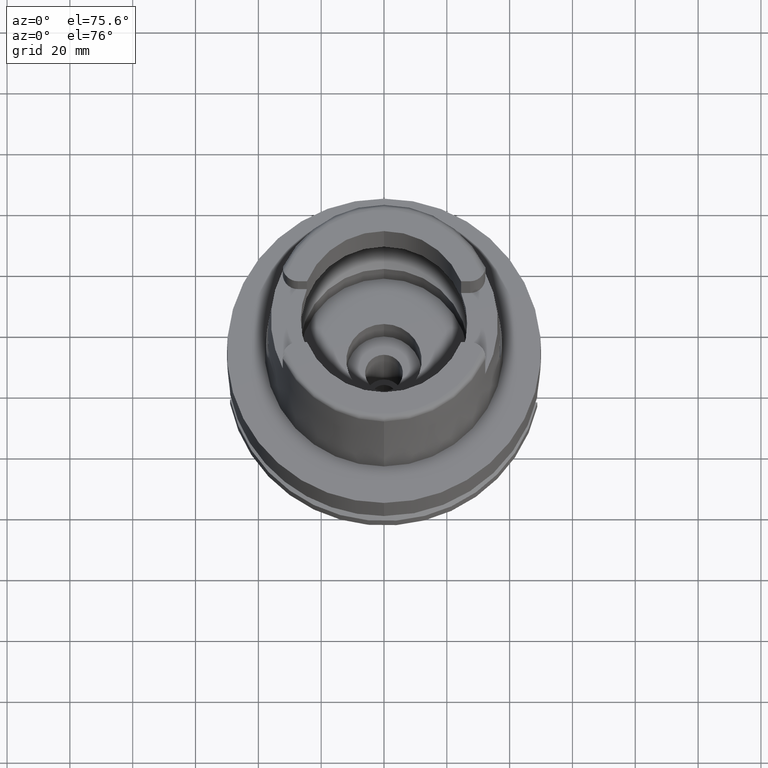
[diagram: clean part render]
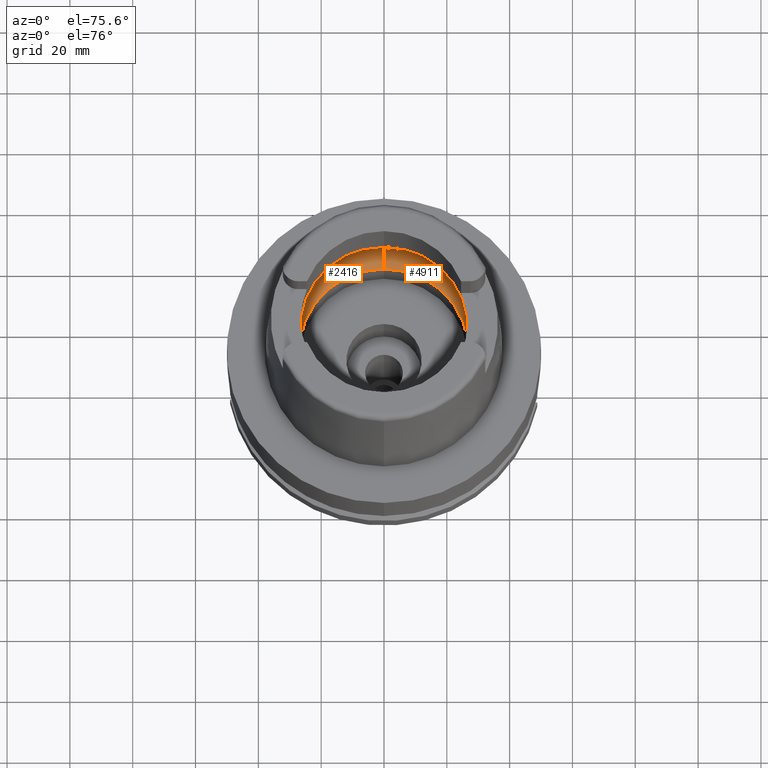
[diagram: same view with one multi-face feature highlighted, each face labeled with its STEP entity id]
A machine part, auxiliary view. The highlighted faces form ONE feature: a constant-radius fillet chain: 2 tangent blend faces with common blend radius 12 mm. The faces share edges in the B-rep.
Their STEP definitions:
[1] entity #2416 (Torus):
#172 = FACE_OUTER_BOUND ( 'NONE', #1548, .T. ) ;
#389 = ORIENTED_EDGE ( 'NONE', *, *, #4074, .F. ) ;
#398 = CARTESIAN_POINT ( 'NONE',  ( 0.0000000000000000000, 31.50000000000000000, 9.496624327025999790 ) ) ;
#424 = CARTESIAN_POINT ( 'NONE',  ( -31.48416661469000033, 0.8216269012393999649, 9.037606318336999678 ) ) ;
#436 = CARTESIAN_POINT ( 'NONE',  ( -31.40918884336000616, -2.390158196043999705, 9.496624327025999790 ) ) ;
#450 = CIRCLE ( 'NONE', #2060, 31.50000000000000000 ) ;
#512 = AXIS2_PLACEMENT_3D ( 'NONE', #4794, #2208, #4711 ) ;
#645 = DIRECTION ( 'NONE',  ( -1.000000000000000000, 0.0000000000000000000, 0.0000000000000000000 ) ) ;
#974 = ORIENTED_EDGE ( 'NONE', *, *, #996, .F. ) ;
#994 = DIRECTION ( 'NONE',  ( 0.0000000000000000000, -1.000000000000000000, 0.0000000000000000000 ) ) ;
#996 = EDGE_CURVE ( 'NONE', #5440, #1225, #5202, .T. ) ;
#1024 = EDGE_CURVE ( 'NONE', #1707, #2049, #1685, .T. ) ;
#1100 = ORIENTED_EDGE ( 'NONE', *, *, #5403, .F. ) ;
#1225 = VERTEX_POINT ( 'NONE', #2857 ) ;
#1356 = CARTESIAN_POINT ( 'NONE',  ( 0.0000000000000000000, 26.89999999999999858, 0.04993178413032000468 ) ) ;
#1548 = EDGE_LOOP ( 'NONE', ( #3791, #974, #389, #3366, #5012, #1100, #4472 ) ) ;
#1682 = AXIS2_PLACEMENT_3D ( 'NONE', #2871, #4594, #2031 ) ;
#1684 = CARTESIAN_POINT ( 'NONE',  ( -31.48971910754000447, -0.2740811097498000448, 9.000000000000000000 ) ) ;
#1685 = CIRCLE ( 'NONE', #2665, 11.99999999999999822 ) ;
#1706 = TOROIDAL_SURFACE ( 'NONE', #3505, 19.50000000000000000, 12.00000000000000000 ) ;
#1707 = VERTEX_POINT ( 'NONE', #1356 ) ;
#1724 = CARTESIAN_POINT ( 'NONE',  ( -31.48971910754000447, 0.0000000000000000000, 9.000000000000000000 ) ) ;
#1968 = DIRECTION ( 'NONE',  ( 0.0000000000000000000, 1.000000000000000000, 0.0000000000000000000 ) ) ;
#2031 = DIRECTION ( 'NONE',  ( -0.9971171061384286327, 0.07587803796966216541, 0.0000000000000000000 ) ) ;
#2049 = VERTEX_POINT ( 'NONE', #398 ) ;
#2060 = AXIS2_PLACEMENT_3D ( 'NONE', #4843, #3124, #994 ) ;
#2161 = CARTESIAN_POINT ( 'NONE',  ( -31.40918884336000616, -2.390158196043999705, 9.496624327025999790 ) ) ;
#2195 = CARTESIAN_POINT ( 'NONE',  ( -31.40918884336000616, 2.390158196043999705, 9.496624327025999790 ) ) ;
#2208 = DIRECTION ( 'NONE',  ( 0.0000000000000000000, 0.0000000000000000000, 1.000000000000000000 ) ) ;
#2225 = AXIS2_PLACEMENT_3D ( 'NONE', #2252, #645, #4034 ) ;
#2252 = CARTESIAN_POINT ( 'NONE',  ( 0.0000000000000000000, -19.50000000000000000, 9.496624327025999790 ) ) ;
#2277 = VERTEX_POINT ( 'NONE', #436 ) ;
#2416 = ADVANCED_FACE ( 'NONE', ( #172 ), #1706, .F. ) ;
#2487 = VERTEX_POINT ( 'NONE', #1724 ) ;
#2551 = CARTESIAN_POINT ( 'NONE',  ( -31.42817526838999953, 2.140656631636999929, 9.388263887083001080 ) ) ;
#2608 = CARTESIAN_POINT ( 'NONE',  ( -31.42817545703999826, -2.140654152532999621, 9.388262810390001434 ) ) ;
#2664 = EDGE_CURVE ( 'NONE', #1225, #2277, #450, .T. ) ;
#2665 = AXIS2_PLACEMENT_3D ( 'NONE', #3548, #2702, #3998 ) ;
#2702 = DIRECTION ( 'NONE',  ( 1.000000000000000000, 0.0000000000000000000, 0.0000000000000000000 ) ) ;
#2857 = CARTESIAN_POINT ( 'NONE',  ( 0.0000000000000000000, -31.50000000000000000, 9.496624327025999790 ) ) ;
#2871 = CARTESIAN_POINT ( 'NONE',  ( 0.0000000000000000000, 0.0000000000000000000, 9.496624327025999790 ) ) ;
#2927 = CARTESIAN_POINT ( 'NONE',  ( -31.40918884336000616, 2.390158196043999705, 9.496624327025999790 ) ) ;
#2977 = CARTESIAN_POINT ( 'NONE',  ( -31.48971910754000447, 0.2740813517951999900, 9.000000000000000000 ) ) ;
#3002 = CARTESIAN_POINT ( 'NONE',  ( 0.0000000000000000000, -26.89999999999999858, 0.04993178413032000468 ) ) ;
#3020 = CIRCLE ( 'NONE', #1682, 31.50000000000001421 ) ;
#3042 = VERTEX_POINT ( 'NONE', #2927 ) ;
#3124 = DIRECTION ( 'NONE',  ( 0.0000000000000000000, 0.0000000000000000000, -1.000000000000000000 ) ) ;
#3194 = CIRCLE ( 'NONE', #512, 26.89999999999999858 ) ;
#3366 = ORIENTED_EDGE ( 'NONE', *, *, #1024, .T. ) ;
#3369 = CARTESIAN_POINT ( 'NONE',  ( -31.48416659375000037, -0.8216262390445000507, 9.037606438216000626 ) ) ;
#3400 = CARTESIAN_POINT ( 'NONE',  ( -31.48971910754000447, 0.0000000000000000000, 9.000000000000000000 ) ) ;
#3407 = CARTESIAN_POINT ( 'NONE',  ( -31.48971910754000447, 0.0000000000000000000, 9.000000000000000000 ) ) ;
#3505 = AXIS2_PLACEMENT_3D ( 'NONE', #5386, #4852, #1968 ) ;
#3548 = CARTESIAN_POINT ( 'NONE',  ( 0.0000000000000000000, 19.50000000000000000, 9.496624327025999790 ) ) ;
#3791 = ORIENTED_EDGE ( 'NONE', *, *, #2664, .F. ) ;
#3998 = DIRECTION ( 'NONE',  ( 0.0000000000000000000, 0.6166666666667049990, -0.7872243785746061429 ) ) ;
#4034 = DIRECTION ( 'NONE',  ( 0.0000000000000000000, -0.6166666666667049990, -0.7872243785746061429 ) ) ;
#4074 = EDGE_CURVE ( 'NONE', #1707, #5440, #3194, .T. ) ;
#4296 = EDGE_CURVE ( 'NONE', #3042, #2049, #3020, .T. ) ;
#4333 = CARTESIAN_POINT ( 'NONE',  ( -31.45843235400999660, -1.626121130666000170, 9.205188134635001518 ) ) ;
#4472 = ORIENTED_EDGE ( 'NONE', *, *, #4663, .F. ) ;
#4501 = B_SPLINE_CURVE_WITH_KNOTS ( 'NONE', 3,
 ( #3407, #2977, #424, #5129, #2551, #2195 ),
 .UNSPECIFIED., .F., .F.,
 ( 4, 1, 1, 4 ),
 ( 0.0000000000000000000, 0.3333333333333000081, 0.6666666666667000474, 1.000000000000000000 ),
 .UNSPECIFIED. ) ;
#4594 = DIRECTION ( 'NONE',  ( 0.0000000000000000000, 0.0000000000000000000, -1.000000000000000000 ) ) ;
#4663 = EDGE_CURVE ( 'NONE', #2277, #2487, #5534, .T. ) ;
#4711 = DIRECTION ( 'NONE',  ( 0.0000000000000000000, 1.000000000000000000, 0.0000000000000000000 ) ) ;
#4794 = CARTESIAN_POINT ( 'NONE',  ( 0.0000000000000000000, 0.0000000000000000000, 0.04993178413032000468 ) ) ;
#4843 = CARTESIAN_POINT ( 'NONE',  ( 0.0000000000000000000, 0.0000000000000000000, 9.496624327025999790 ) ) ;
#4852 = DIRECTION ( 'NONE',  ( 0.0000000000000000000, 0.0000000000000000000, 1.000000000000000000 ) ) ;
#5012 = ORIENTED_EDGE ( 'NONE', *, *, #4296, .F. ) ;
#5129 = CARTESIAN_POINT ( 'NONE',  ( -31.45843209623000547, 1.626127188330999784, 9.205189758010000389 ) ) ;
#5202 = CIRCLE ( 'NONE', #2225, 11.99999999999999822 ) ;
#5386 = CARTESIAN_POINT ( 'NONE',  ( 0.0000000000000000000, 0.0000000000000000000, 9.496624327025999790 ) ) ;
#5403 = EDGE_CURVE ( 'NONE', #2487, #3042, #4501, .T. ) ;
#5440 = VERTEX_POINT ( 'NONE', #3002 ) ;
#5534 = B_SPLINE_CURVE_WITH_KNOTS ( 'NONE', 3,
 ( #2161, #2608, #4333, #3369, #1684, #3400 ),
 .UNSPECIFIED., .F., .F.,
 ( 4, 1, 1, 4 ),
 ( 0.0000000000000000000, 0.3333333333333000081, 0.6666666666667000474, 1.000000000000000000 ),
 .UNSPECIFIED. ) ;
[2] entity #4911 (Torus):
#52 = CARTESIAN_POINT ( 'NONE',  ( 31.42817542026000410, -2.140654635826999996, 9.388263020288000860 ) ) ;
#152 = FACE_OUTER_BOUND ( 'NONE', #4900, .T. ) ;
#315 = CARTESIAN_POINT ( 'NONE',  ( 31.40918884336000616, 2.390158196043999705, 9.496624327025999790 ) ) ;
#321 = AXIS2_PLACEMENT_3D ( 'NONE', #4323, #2114, #3503 ) ;
#350 = ORIENTED_EDGE ( 'NONE', *, *, #4837, .F. ) ;
#398 = CARTESIAN_POINT ( 'NONE',  ( 0.0000000000000000000, 31.50000000000000000, 9.496624327025999790 ) ) ;
#494 = EDGE_CURVE ( 'NONE', #4161, #4600, #5029, .T. ) ;
#496 = DIRECTION ( 'NONE',  ( 0.9971171061384295209, -0.07587803796965221503, 0.0000000000000000000 ) ) ;
#500 = DIRECTION ( 'NONE',  ( 0.0000000000000000000, 1.000000000000000000, 0.0000000000000000000 ) ) ;
#510 = TOROIDAL_SURFACE ( 'NONE', #3927, 19.50000000000000000, 12.00000000000000000 ) ;
#527 = CARTESIAN_POINT ( 'NONE',  ( 0.0000000000000000000, 0.0000000000000000000, 9.496624327025999790 ) ) ;
#606 = B_SPLINE_CURVE_WITH_KNOTS ( 'NONE', 3,
 ( #315, #4963, #5423, #2037, #4211, #721 ),
 .UNSPECIFIED., .F., .F.,
 ( 4, 1, 1, 4 ),
 ( 0.0000000000000000000, 0.3333333333333000081, 0.6666666666667000474, 1.000000000000000000 ),
 .UNSPECIFIED. ) ;
#645 = DIRECTION ( 'NONE',  ( -1.000000000000000000, 0.0000000000000000000, 0.0000000000000000000 ) ) ;
#684 = CIRCLE ( 'NONE', #4637, 31.49999999999998934 ) ;
#721 = CARTESIAN_POINT ( 'NONE',  ( 31.48971910754000447, 0.0000000000000000000, 9.000000000000000000 ) ) ;
#976 = CIRCLE ( 'NONE', #2396, 26.89999999999999858 ) ;
#996 = EDGE_CURVE ( 'NONE', #5440, #1225, #5202, .T. ) ;
#1024 = EDGE_CURVE ( 'NONE', #1707, #2049, #1685, .T. ) ;
#1198 = ORIENTED_EDGE ( 'NONE', *, *, #4014, .F. ) ;
#1225 = VERTEX_POINT ( 'NONE', #2857 ) ;
#1245 = ORIENTED_EDGE ( 'NONE', *, *, #2732, .F. ) ;
#1356 = CARTESIAN_POINT ( 'NONE',  ( 0.0000000000000000000, 26.89999999999999858, 0.04993178413032000468 ) ) ;
#1376 = DIRECTION ( 'NONE',  ( 0.0000000000000000000, 0.0000000000000000000, -1.000000000000000000 ) ) ;
#1685 = CIRCLE ( 'NONE', #2665, 11.99999999999999822 ) ;
#1707 = VERTEX_POINT ( 'NONE', #1356 ) ;
#1740 = DIRECTION ( 'NONE',  ( 0.0000000000000000000, -1.000000000000000000, 0.0000000000000000000 ) ) ;
#2037 = CARTESIAN_POINT ( 'NONE',  ( 31.48416663622000300, 0.8216256622719000369, 9.037606172252001357 ) ) ;
#2049 = VERTEX_POINT ( 'NONE', #398 ) ;
#2114 = DIRECTION ( 'NONE',  ( 0.0000000000000000000, 0.0000000000000000000, -1.000000000000000000 ) ) ;
#2225 = AXIS2_PLACEMENT_3D ( 'NONE', #2252, #645, #4034 ) ;
#2252 = CARTESIAN_POINT ( 'NONE',  ( 0.0000000000000000000, -19.50000000000000000, 9.496624327025999790 ) ) ;
#2396 = AXIS2_PLACEMENT_3D ( 'NONE', #3427, #5146, #1740 ) ;
#2649 = CARTESIAN_POINT ( 'NONE',  ( 31.48416657243999950, -0.8216274657312000462, 9.037606582851999804 ) ) ;
#2665 = AXIS2_PLACEMENT_3D ( 'NONE', #3548, #2702, #3998 ) ;
#2702 = DIRECTION ( 'NONE',  ( 1.000000000000000000, 0.0000000000000000000, 0.0000000000000000000 ) ) ;
#2728 = CARTESIAN_POINT ( 'NONE',  ( 31.48971910754000447, 0.0000000000000000000, 9.000000000000000000 ) ) ;
#2732 = EDGE_CURVE ( 'NONE', #5301, #4161, #606, .T. ) ;
#2757 = CARTESIAN_POINT ( 'NONE',  ( 31.45843229728999901, -1.626122314408000147, 9.205188491873000700 ) ) ;
#2857 = CARTESIAN_POINT ( 'NONE',  ( 0.0000000000000000000, -31.50000000000000000, 9.496624327025999790 ) ) ;
#3002 = CARTESIAN_POINT ( 'NONE',  ( 0.0000000000000000000, -26.89999999999999858, 0.04993178413032000468 ) ) ;
#3256 = CARTESIAN_POINT ( 'NONE',  ( 31.40918884336000616, 2.390158196043999705, 9.496624327025999790 ) ) ;
#3427 = CARTESIAN_POINT ( 'NONE',  ( 0.0000000000000000000, 0.0000000000000000000, 0.04993178413032000468 ) ) ;
#3503 = DIRECTION ( 'NONE',  ( 0.0000000000000000000, 1.000000000000000000, 0.0000000000000000000 ) ) ;
#3510 = CARTESIAN_POINT ( 'NONE',  ( 31.48971910754000447, 0.0000000000000000000, 9.000000000000000000 ) ) ;
#3548 = CARTESIAN_POINT ( 'NONE',  ( 0.0000000000000000000, 19.50000000000000000, 9.496624327025999790 ) ) ;
#3755 = ORIENTED_EDGE ( 'NONE', *, *, #494, .F. ) ;
#3764 = CARTESIAN_POINT ( 'NONE',  ( 31.40918884336000616, -2.390158196043999705, 9.496624327025999790 ) ) ;
#3927 = AXIS2_PLACEMENT_3D ( 'NONE', #4884, #4050, #500 ) ;
#3951 = CARTESIAN_POINT ( 'NONE',  ( 31.40918884336000616, -2.390158196043999705, 9.496624327025999790 ) ) ;
#3998 = DIRECTION ( 'NONE',  ( 0.0000000000000000000, 0.6166666666667049990, -0.7872243785746061429 ) ) ;
#4014 = EDGE_CURVE ( 'NONE', #4600, #1225, #684, .T. ) ;
#4034 = DIRECTION ( 'NONE',  ( 0.0000000000000000000, -0.6166666666667049990, -0.7872243785746061429 ) ) ;
#4050 = DIRECTION ( 'NONE',  ( 0.0000000000000000000, 0.0000000000000000000, 1.000000000000000000 ) ) ;
#4161 = VERTEX_POINT ( 'NONE', #3510 ) ;
#4211 = CARTESIAN_POINT ( 'NONE',  ( 31.48971910754000447, 0.2740808193429000172, 9.000000000000000000 ) ) ;
#4323 = CARTESIAN_POINT ( 'NONE',  ( 0.0000000000000000000, 0.0000000000000000000, 9.496624327025999790 ) ) ;
#4388 = ORIENTED_EDGE ( 'NONE', *, *, #1024, .F. ) ;
#4423 = EDGE_CURVE ( 'NONE', #2049, #5301, #5186, .T. ) ;
#4600 = VERTEX_POINT ( 'NONE', #3764 ) ;
#4637 = AXIS2_PLACEMENT_3D ( 'NONE', #527, #1376, #496 ) ;
#4837 = EDGE_CURVE ( 'NONE', #5440, #1707, #976, .T. ) ;
#4884 = CARTESIAN_POINT ( 'NONE',  ( 0.0000000000000000000, 0.0000000000000000000, 9.496624327025999790 ) ) ;
#4900 = EDGE_LOOP ( 'NONE', ( #1245, #5408, #4388, #350, #5496, #1198, #3755 ) ) ;
#4911 = ADVANCED_FACE ( 'NONE', ( #152 ), #510, .F. ) ;
#4963 = CARTESIAN_POINT ( 'NONE',  ( 31.42817530553000083, 2.140656143518000487, 9.388263675090000149 ) ) ;
#5029 = B_SPLINE_CURVE_WITH_KNOTS ( 'NONE', 3,
 ( #2728, #5332, #2649, #2757, #52, #3951 ),
 .UNSPECIFIED., .F., .F.,
 ( 4, 1, 1, 4 ),
 ( 0.0000000000000000000, 0.3333333333333000081, 0.6666666666667000474, 1.000000000000000000 ),
 .UNSPECIFIED. ) ;
#5146 = DIRECTION ( 'NONE',  ( 0.0000000000000000000, 0.0000000000000000000, 1.000000000000000000 ) ) ;
#5186 = CIRCLE ( 'NONE', #321, 31.50000000000000000 ) ;
#5202 = CIRCLE ( 'NONE', #2225, 11.99999999999999822 ) ;
#5301 = VERTEX_POINT ( 'NONE', #3256 ) ;
#5332 = CARTESIAN_POINT ( 'NONE',  ( 31.48971910754000447, -0.2740816369240999806, 9.000000000000000000 ) ) ;
#5408 = ORIENTED_EDGE ( 'NONE', *, *, #4423, .F. ) ;
#5423 = CARTESIAN_POINT ( 'NONE',  ( 31.45843215351000310, 1.626125992769999806, 9.205189397203000112 ) ) ;
#5440 = VERTEX_POINT ( 'NONE', #3002 ) ;
#5496 = ORIENTED_EDGE ( 'NONE', *, *, #996, .T. ) ;